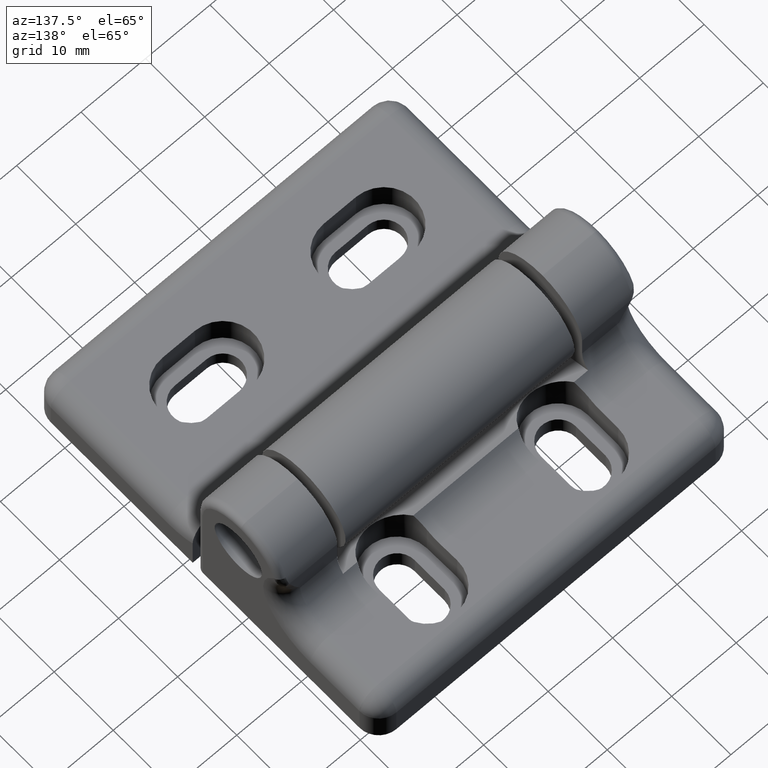
[diagram: clean part render]
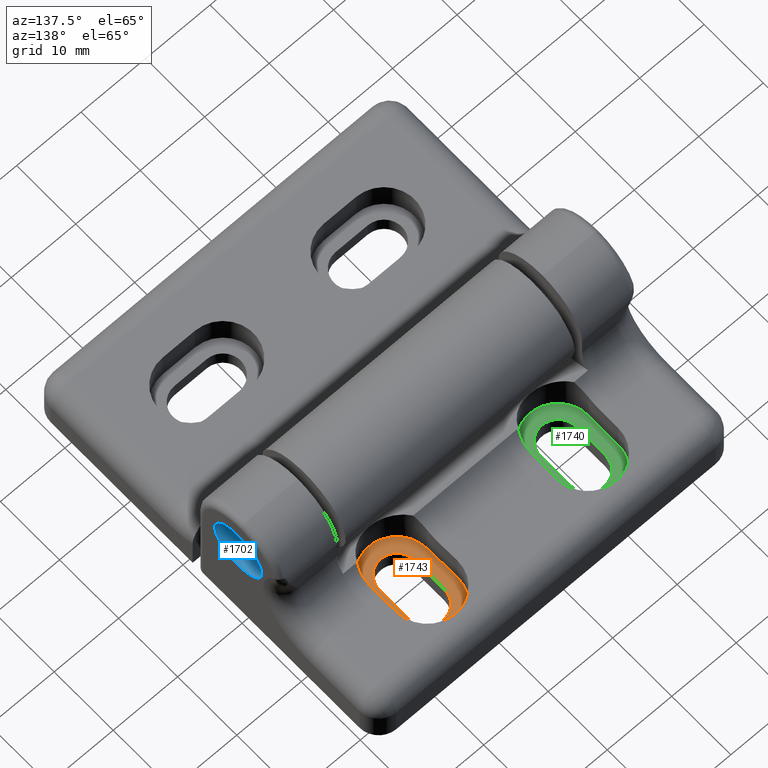
[diagram: same view with three faces highlighted in distinct colors, each labeled with its STEP entity id]
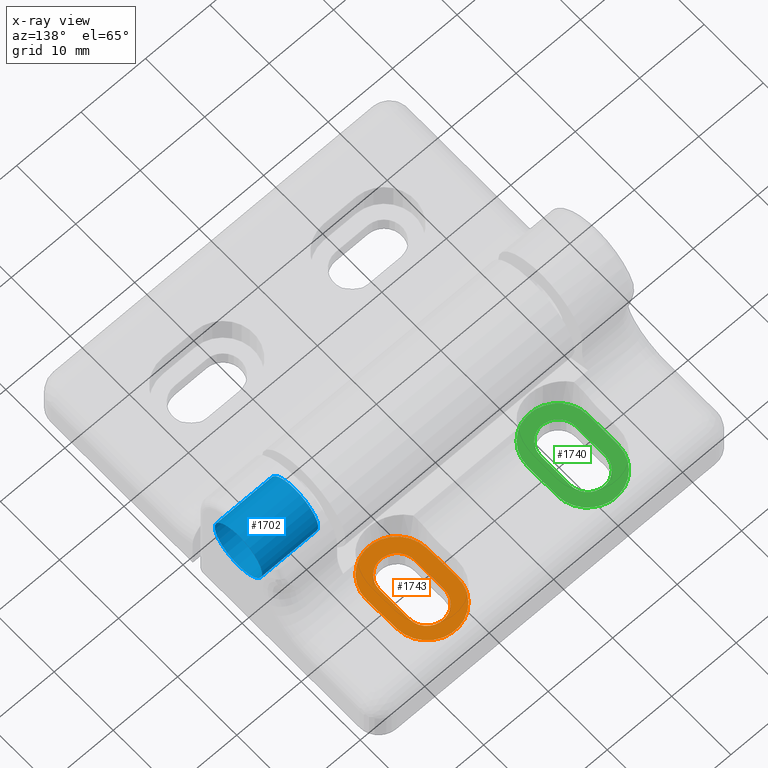
[diagram: x-ray of the same camera — body ghosted, the three highlighted faces saturated]
A machine part, auxiliary view with three faces highlighted in distinct colors.
The next image is the same camera in x-ray (body ghosted, the three faces saturated) — at least one of them is partly hidden behind the body in this view.
Their STEP definitions:

[orange] entity #1743 — the highlighted planar face has unit normal (0, 0, -1).
#66=PLANE('',#1901);
#113=FACE_BOUND('',#279,.T.);
#170=FACE_OUTER_BOUND('',#278,.T.);
#278=EDGE_LOOP('',(#1375,#1376,#1377,#1378));
#279=EDGE_LOOP('',(#1379,#1380,#1381,#1382));
#413=LINE('',#2900,#555);
#416=LINE('',#2907,#558);
#419=LINE('',#2914,#561);
#420=LINE('',#2916,#562);
#555=VECTOR('',#2253,5.0000000539646);
#558=VECTOR('',#2262,5.04424959187892);
#561=VECTOR('',#2273,5.01685803024943);
#562=VECTOR('',#2276,5.0000857266651);
#631=CIRCLE('',#1804,4.75000740289338);
#635=CIRCLE('',#1810,2.75);
#649=CIRCLE('',#1835,4.75);
#681=CIRCLE('',#1894,2.75017944615839);
#727=VERTEX_POINT('',#2551);
#728=VERTEX_POINT('',#2553);
#735=VERTEX_POINT('',#2569);
#736=VERTEX_POINT('',#2571);
#767=VERTEX_POINT('',#2688);
#768=VERTEX_POINT('',#2690);
#819=VERTEX_POINT('',#2899);
#820=VERTEX_POINT('',#2903);
#891=EDGE_CURVE('',#727,#728,#631,.T.);
#899=EDGE_CURVE('',#735,#736,#635,.T.);
#937=EDGE_CURVE('',#767,#768,#649,.T.);
#1021=EDGE_CURVE('',#736,#819,#413,.T.);
#1023=EDGE_CURVE('',#819,#820,#681,.T.);
#1025=EDGE_CURVE('',#820,#735,#416,.T.);
#1028=EDGE_CURVE('',#768,#727,#419,.T.);
#1029=EDGE_CURVE('',#728,#767,#420,.T.);
#1375=ORIENTED_EDGE('',*,*,#1028,.F.);
#1376=ORIENTED_EDGE('',*,*,#937,.F.);
#1377=ORIENTED_EDGE('',*,*,#1029,.F.);
#1378=ORIENTED_EDGE('',*,*,#891,.F.);
#1379=ORIENTED_EDGE('',*,*,#1025,.F.);
#1380=ORIENTED_EDGE('',*,*,#1023,.F.);
#1381=ORIENTED_EDGE('',*,*,#1021,.F.);
#1382=ORIENTED_EDGE('',*,*,#899,.F.);
#1743=ADVANCED_FACE('',(#170,#113),#66,.F.);
#1804=AXIS2_PLACEMENT_3D('',#2554,#2009,#2010);
#1810=AXIS2_PLACEMENT_3D('',#2572,#2025,#2026);
#1835=AXIS2_PLACEMENT_3D('',#2691,#2091,#2092);
#1894=AXIS2_PLACEMENT_3D('',#2904,#2257,#2258);
#1901=AXIS2_PLACEMENT_3D('',#2917,#2277,#2278);
#2009=DIRECTION('center_axis',(0.,0.,-1.));
#2010=DIRECTION('ref_axis',(1.,0.,0.));
#2025=DIRECTION('center_axis',(0.,0.,1.));
#2026=DIRECTION('ref_axis',(-1.,0.,0.));
#2091=DIRECTION('center_axis',(0.,0.,-1.));
#2092=DIRECTION('ref_axis',(-1.,0.,0.));
#2253=DIRECTION('',(0.,1.,0.));
#2257=DIRECTION('center_axis',(0.,0.,1.));
#2258=DIRECTION('ref_axis',(-1.,0.,0.));
#2262=DIRECTION('',(0.,-1.,0.));
#2273=DIRECTION('',(-0.0194205620450105,0.999811403100533,0.));
#2276=DIRECTION('',(0.0194205620450117,-0.999811403100533,0.));
#2277=DIRECTION('center_axis',(0.,0.,-1.));
#2278=DIRECTION('ref_axis',(-1.,0.,0.));
#2551=CARTESIAN_POINT('',(17.60260196944,37.0420814408275,3.49777293092991));
#2553=CARTESIAN_POINT('',(27.1011360264575,37.2098076398753,3.49777293092991));
#2554=CARTESIAN_POINT('Origin',(22.3518689979487,37.1259445403514,3.49777293092991));
#2569=CARTESIAN_POINT('',(19.7501794461584,32.2181345554533,3.49777293092991));
#2571=CARTESIAN_POINT('',(25.2501794344507,32.2181345014887,3.49777293092991));
#2572=CARTESIAN_POINT('Origin',(22.5001794403037,32.2179551092949,3.49777293092991));
#2688=CARTESIAN_POINT('',(27.1982405015425,32.2106649138753,3.49777293092991));
#2690=CARTESIAN_POINT('',(17.7000321720875,32.0261695744477,3.49777293092991));
#2691=CARTESIAN_POINT('Origin',(22.449136336815,32.1184172441615,3.49777293092991));
#2899=CARTESIAN_POINT('',(25.250179434449,37.2181345554533,3.49777293092991));
#2900=CARTESIAN_POINT('',(25.250179434449,32.2179551092949,3.49777293092991));
#2903=CARTESIAN_POINT('',(19.7501794461584,37.2623841473323,3.49777293092991));
#2904=CARTESIAN_POINT('Origin',(22.4999999941453,37.2179551034402,3.49777293092991));
#2907=CARTESIAN_POINT('',(19.7501794461584,37.2623841473323,3.49777293092991));
#2914=CARTESIAN_POINT('',(17.7000321720875,32.0261695744477,3.49777293092991));
#2916=CARTESIAN_POINT('',(27.1011360264575,37.2098076398753,3.49777293092991));
#2917=CARTESIAN_POINT('Origin',(27.6780594468669,26.6439903911035,3.49777293092991));

[blue] entity #1702 — the highlighted cylindrical surface (bore or boss wall) has radius 4 mm, axis along (1, 0, 0).
#107=FACE_BOUND('',#232,.T.);
#129=FACE_OUTER_BOUND('',#231,.T.);
#231=EDGE_LOOP('',(#1159));
#232=EDGE_LOOP('',(#1160));
#638=CIRCLE('',#1815,4.);
#639=CIRCLE('',#1816,4.);
#739=VERTEX_POINT('',#2580);
#740=VERTEX_POINT('',#2582);
#903=EDGE_CURVE('',#739,#739,#638,.T.);
#904=EDGE_CURVE('',#740,#740,#639,.T.);
#1159=ORIENTED_EDGE('',*,*,#903,.T.);
#1160=ORIENTED_EDGE('',*,*,#904,.F.);
#1661=CYLINDRICAL_SURFACE('',#1814,4.);
#1702=ADVANCED_FACE('',(#129,#107),#1661,.F.);
#1814=AXIS2_PLACEMENT_3D('',#2579,#2034,#2035);
#1815=AXIS2_PLACEMENT_3D('',#2581,#2036,#2037);
#1816=AXIS2_PLACEMENT_3D('',#2583,#2038,#2039);
#2034=DIRECTION('center_axis',(1.,0.,0.));
#2035=DIRECTION('ref_axis',(0.,-1.,0.));
#2036=DIRECTION('center_axis',(-1.,0.,0.));
#2037=DIRECTION('ref_axis',(0.,0.,-1.));
#2038=DIRECTION('center_axis',(-1.,0.,0.));
#2039=DIRECTION('ref_axis',(0.,0.,1.));
#2579=CARTESIAN_POINT('Origin',(28.99999999,21.9677756572818,15.9977729309299));
#2580=CARTESIAN_POINT('',(29.,21.9677756572818,19.9977729309299));
#2581=CARTESIAN_POINT('Origin',(29.,21.9677756572818,15.9977729309299));
#2582=CARTESIAN_POINT('',(37.75,21.9677756572818,19.9977729309299));
#2583=CARTESIAN_POINT('Origin',(37.75,21.9677756572818,15.9977729309299));

[green] entity #1740 — the highlighted planar face has unit normal (0, 0, 1).
#63=PLANE('',#1898);
#112=FACE_BOUND('',#275,.T.);
#167=FACE_OUTER_BOUND('',#274,.T.);
#274=EDGE_LOOP('',(#1357,#1358,#1359,#1360));
#275=EDGE_LOOP('',(#1361,#1362,#1363,#1364));
#392=LINE('',#2774,#534);
#395=LINE('',#2783,#537);
#417=LINE('',#2909,#559);
#418=LINE('',#2911,#560);
#534=VECTOR('',#2158,5.00006922402705);
#537=VECTOR('',#2169,5.02759472850249);
#559=VECTOR('',#2265,5.00000001796011);
#560=VECTOR('',#2268,5.00000000004328);
#633=CIRCLE('',#1807,4.75);
#648=CIRCLE('',#1832,4.75000000000374);
#658=CIRCLE('',#1853,2.75006922402703);
#661=CIRCLE('',#1858,2.75);
#731=VERTEX_POINT('',#2560);
#732=VERTEX_POINT('',#2562);
#765=VERTEX_POINT('',#2681);
#766=VERTEX_POINT('',#2683);
#790=VERTEX_POINT('',#2763);
#791=VERTEX_POINT('',#2765);
#794=VERTEX_POINT('',#2772);
#796=VERTEX_POINT('',#2779);
#895=EDGE_CURVE('',#732,#731,#633,.T.);
#933=EDGE_CURVE('',#766,#765,#648,.T.);
#971=EDGE_CURVE('',#790,#791,#658,.T.);
#975=EDGE_CURVE('',#794,#790,#392,.T.);
#979=EDGE_CURVE('',#796,#794,#661,.T.);
#980=EDGE_CURVE('',#791,#796,#395,.T.);
#1026=EDGE_CURVE('',#731,#766,#417,.T.);
#1027=EDGE_CURVE('',#765,#732,#418,.T.);
#1357=ORIENTED_EDGE('',*,*,#1026,.T.);
#1358=ORIENTED_EDGE('',*,*,#933,.T.);
#1359=ORIENTED_EDGE('',*,*,#1027,.T.);
#1360=ORIENTED_EDGE('',*,*,#895,.T.);
#1361=ORIENTED_EDGE('',*,*,#975,.F.);
#1362=ORIENTED_EDGE('',*,*,#979,.F.);
#1363=ORIENTED_EDGE('',*,*,#980,.F.);
#1364=ORIENTED_EDGE('',*,*,#971,.F.);
#1740=ADVANCED_FACE('',(#167,#112),#63,.T.);
#1807=AXIS2_PLACEMENT_3D('',#2563,#2017,#2018);
#1832=AXIS2_PLACEMENT_3D('',#2684,#2083,#2084);
#1853=AXIS2_PLACEMENT_3D('',#2766,#2150,#2151);
#1858=AXIS2_PLACEMENT_3D('',#2781,#2165,#2166);
#1898=AXIS2_PLACEMENT_3D('',#2912,#2269,#2270);
#2017=DIRECTION('center_axis',(0.,0.,1.));
#2018=DIRECTION('ref_axis',(1.,0.,0.));
#2083=DIRECTION('center_axis',(0.,0.,1.));
#2084=DIRECTION('ref_axis',(-1.,0.,0.));
#2150=DIRECTION('center_axis',(0.,0.,1.));
#2151=DIRECTION('ref_axis',(1.,0.,0.));
#2158=DIRECTION('',(0.,1.,0.));
#2165=DIRECTION('center_axis',(0.,0.,1.));
#2166=DIRECTION('ref_axis',(1.,0.,0.));
#2169=DIRECTION('',(0.,-1.,0.));
#2265=DIRECTION('',(1.37970392440099E-5,-0.999999999904821,0.));
#2268=DIRECTION('',(-1.37970392440261E-5,0.999999999904821,0.));
#2269=DIRECTION('center_axis',(0.,0.,1.));
#2270=DIRECTION('ref_axis',(1.,0.,0.));
#2560=CARTESIAN_POINT('',(-7.25003449200839,37.1748315056409,3.49777293092991));
#2562=CARTESIAN_POINT('',(2.24996550724458,37.1749506439721,3.49777293092991));
#2563=CARTESIAN_POINT('Origin',(-2.50003449238179,37.1748910658481,3.49777293092991));
#2681=CARTESIAN_POINT('',(2.2500344924408,32.1749506444047,3.49777293092991));
#2683=CARTESIAN_POINT('',(-7.24996550681193,32.1748314881567,3.49777293092991));
#2684=CARTESIAN_POINT('Origin',(-2.49996550726029,32.1748970240931,3.49777293092991));
#2763=CARTESIAN_POINT('',(0.249930774230435,37.2179141044647,3.49777293092991));
#2765=CARTESIAN_POINT('',(-5.25006922402703,37.2454396089401,3.49777293092991));
#2766=CARTESIAN_POINT('Origin',(-2.50013844892533,37.2178448795667,3.49777293092991));
#2772=CARTESIAN_POINT('',(0.249930775101703,32.2178448804376,3.49777293092991));
#2774=CARTESIAN_POINT('',(0.249930774230435,32.2178448804376,3.49777293092991));
#2779=CARTESIAN_POINT('',(-5.2500692248983,32.2178448804376,3.49777293092991));
#2781=CARTESIAN_POINT('Origin',(-2.5000692248983,32.2178448804376,3.49777293092991));
#2783=CARTESIAN_POINT('',(-5.25006922402703,37.2454396089401,3.49777293092991));
#2909=CARTESIAN_POINT('',(-7.25003449283016,37.1748910658481,3.49777293092991));
#2911=CARTESIAN_POINT('',(2.2500344924408,32.1749506444047,3.49777293092991));
#2912=CARTESIAN_POINT('Origin',(-7.72503794162293,26.6998973223984,3.49777293092991));